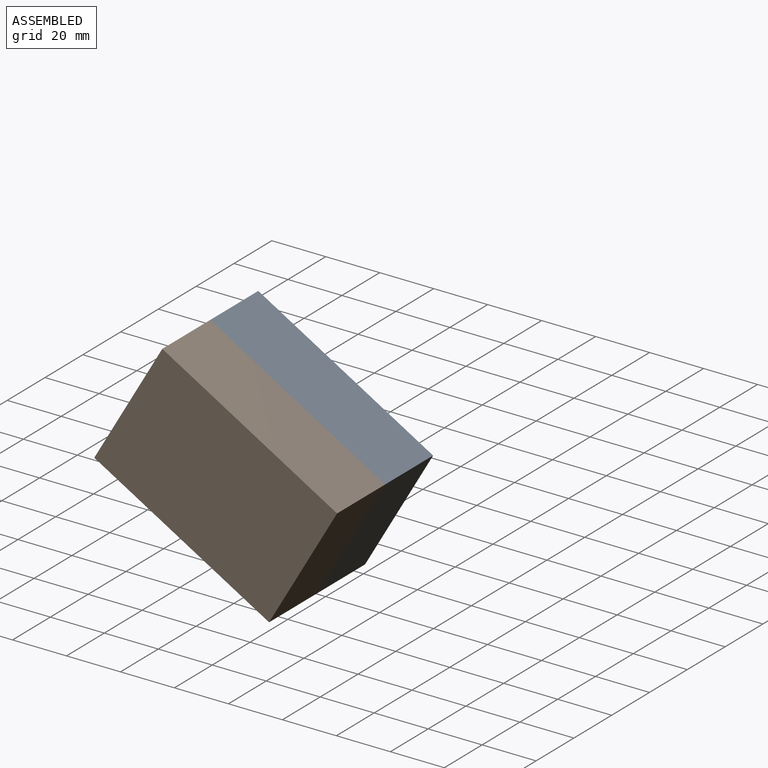
[diagram: assembled view]
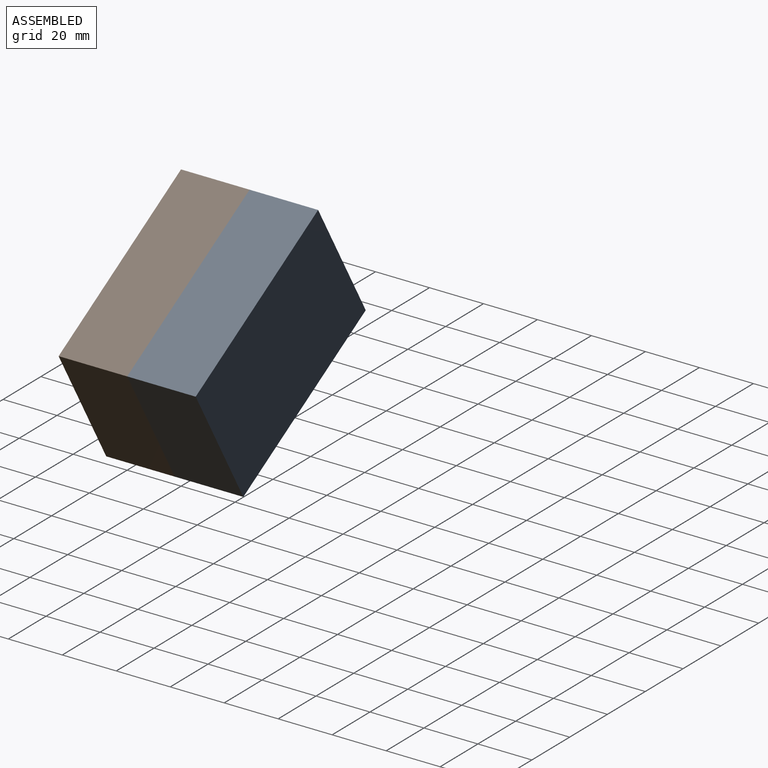
[diagram: assembled view, second angle]
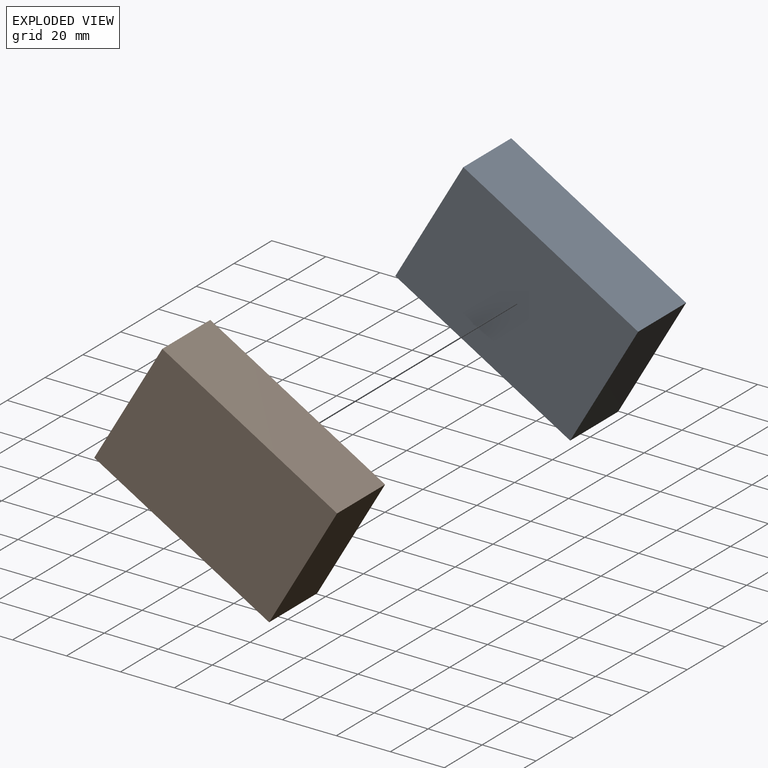
[diagram: exploded view]
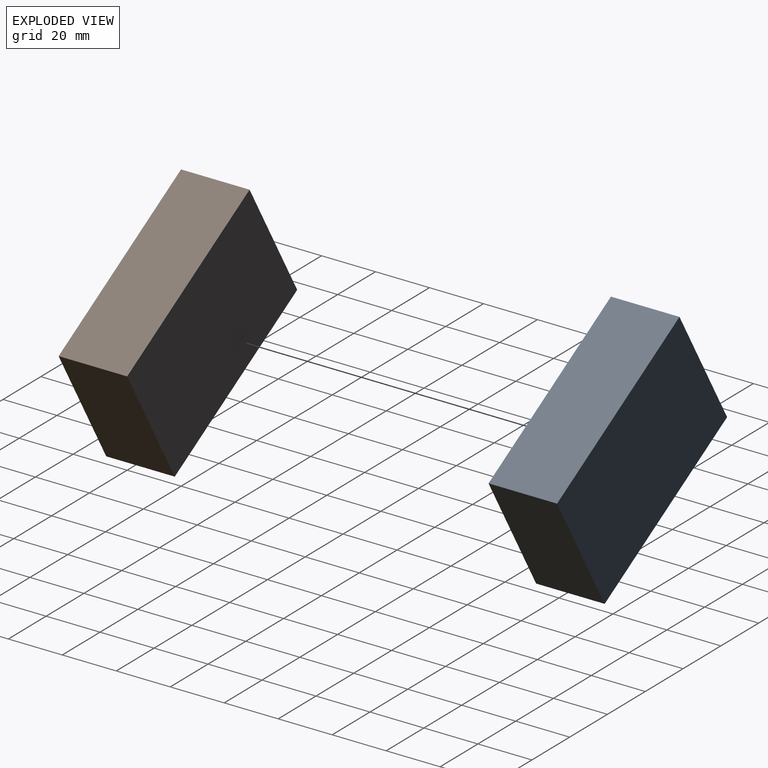
[diagram: exploded view, second angle]
ASSEMBLY  parts=2 mates=3
PART A: 6 faces, bbox 50x25.4x75 mm
  f0: plane 50x25.4mm, normal (0,0,1), area 1270mm2, adj f1,f3,f4,f5
  f1: plane 75x25.4mm, normal (-1,0,0), area 1905mm2, adj f0,f2,f4,f5
  f2: plane 50x25.4mm, normal (0,0,-1), area 1270mm2, adj f1,f3,f4,f5
  f3: plane 75x25.4mm, normal (1,0,0), area 1905mm2, adj f0,f2,f4,f5
  f4: plane 75x50mm, normal (0,-1,0), area 3750mm2, adj f0,f1,f2,f3
  f5: plane 75x50mm, normal (0,1,0), area 3750mm2, adj f0,f1,f2,f3
PART B: same geometry as A
PLACE A rot(axis=(0,-1,0),59.7deg) t=(58.98,42.36,-20.95)mm
PLACE B rot(axis=(0.87,0,0.5),180deg) t=(-5.8,-8.44,16.84)mm fixed
MATE planar B.f4 <-> A.f4  axis (0,1,0) through (39.19,16.96,19.54)mm
MATE planar A.f3 <-> B.f3  axis (0.5,0,0.86) through (51.79,29.66,41.13)mm
MATE planar B.f0 <-> A.f2  axis (0.86,0,-0.5) through (71.58,4.26,0.64)mm
